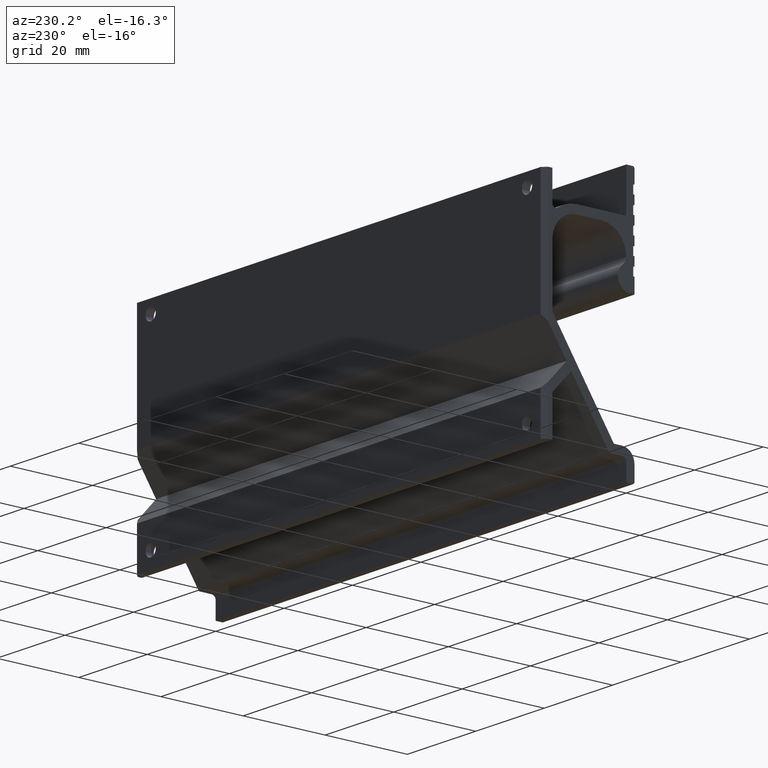
[diagram: clean part render]
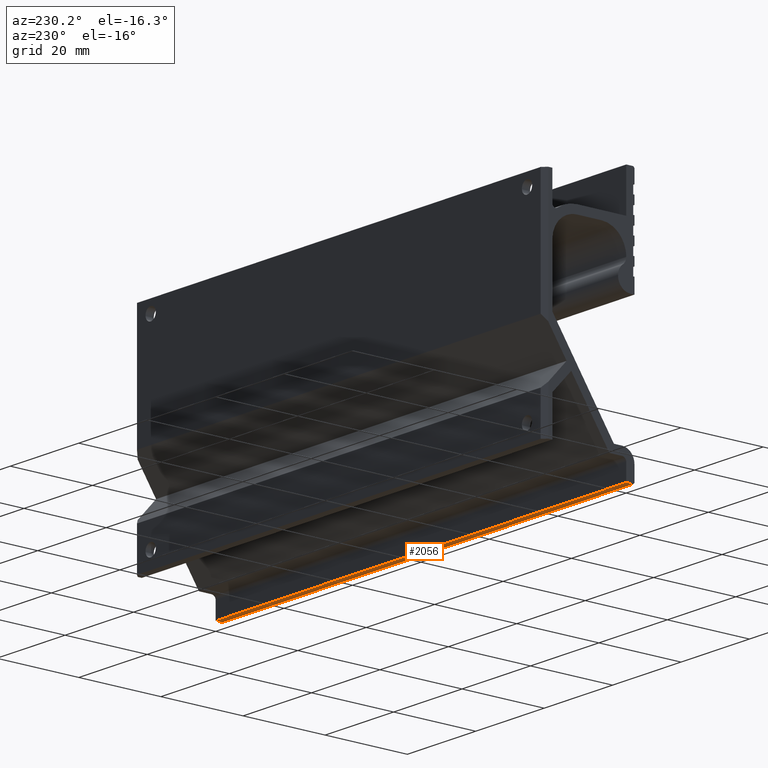
[diagram: same view with one face highlighted and labeled with its STEP entity id]
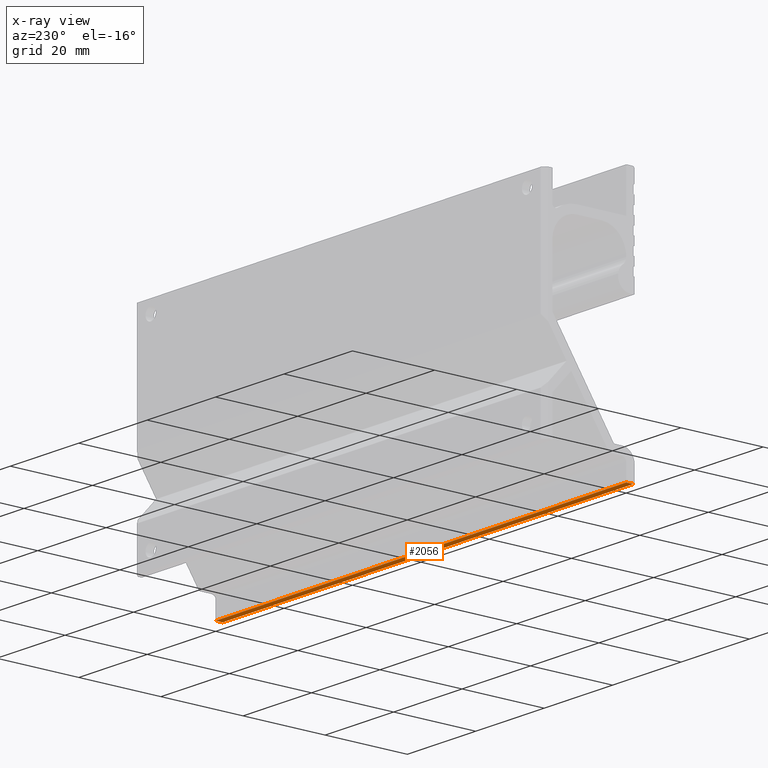
[diagram: x-ray of the same camera — body ghosted, the highlighted face saturated]
A machine part, auxiliary view. The second image highlights one B-rep face of the part: STEP entity #2056.
The next image is the same camera in x-ray: the body ghosted, the highlighted face saturated — about 0% of this face is hidden behind the body in this view.
In plain terms, the highlighted face is a freeform B-spline surface patch.
Its self-contained STEP definition (entity closure, byte-faithful):
#1269=CARTESIAN_POINT('',(60.0,-1.699999999999905,-1.040915E-016));
#1270=VERTEX_POINT('',#1269);
#1276=CARTESIAN_POINT('',(60.0,0.0,0.0));
#1277=VERTEX_POINT('',#1276);
#1278=CARTESIAN_POINT('',(60.0,-1.699999999999905,-1.040915E-016));
#1279=CARTESIAN_POINT('',(60.0,0.0,0.0));
#1280=QUASI_UNIFORM_CURVE('',1,(#1278,#1279),.UNSPECIFIED.,.F.,.U.);
#1281=EDGE_CURVE('',#1270,#1277,#1280,.T.);
#1410=CARTESIAN_POINT('',(-60.0,0.0,0.0));
#1411=VERTEX_POINT('',#1410);
#1417=CARTESIAN_POINT('',(-60.0,-1.699999999999905,-1.040915E-016));
#1418=VERTEX_POINT('',#1417);
#1419=CARTESIAN_POINT('',(-60.0,-1.699999999999905,-1.040915E-016));
#1420=CARTESIAN_POINT('',(-60.0,0.0,0.0));
#1421=QUASI_UNIFORM_CURVE('',1,(#1419,#1420),.UNSPECIFIED.,.F.,.U.);
#1422=EDGE_CURVE('',#1418,#1411,#1421,.T.);
#2031=CARTESIAN_POINT('',(-60.0,0.0,0.0));
#2032=CARTESIAN_POINT('',(60.0,0.0,0.0));
#2033=QUASI_UNIFORM_CURVE('',1,(#2031,#2032),.UNSPECIFIED.,.F.,.U.);
#2034=EDGE_CURVE('',#1411,#1277,#2033,.T.);
#2041=CARTESIAN_POINT('',(-65.993999767416696,-1.784915044580122,-1.040915E-016));
#2042=CARTESIAN_POINT('',(-65.993999767416696,0.084915044580216,-1.040915E-016));
#2043=CARTESIAN_POINT('',(65.994002986067528,-1.784915044580122,-1.040915E-016));
#2044=CARTESIAN_POINT('',(65.994002986067528,0.084915044580216,-1.040915E-016));
#2045=B_SPLINE_SURFACE_WITH_KNOTS('',1,1,((#2041,#2043),(#2042,#2044)),.UNSPECIFIED.,.F.,.F.,.U.,(2,2),(2,2),(0.0,1.869830089160338),(0.0,131.988002753484210),.UNSPECIFIED.);
#2046=ORIENTED_EDGE('',*,*,#1281,.F.);
#2047=CARTESIAN_POINT('',(-60.0,-1.699999999999905,-1.040915E-016));
#2048=CARTESIAN_POINT('',(60.0,-1.699999999999905,-1.040915E-016));
#2049=QUASI_UNIFORM_CURVE('',1,(#2047,#2048),.UNSPECIFIED.,.F.,.U.);
#2050=EDGE_CURVE('',#1418,#1270,#2049,.T.);
#2051=ORIENTED_EDGE('',*,*,#2050,.F.);
#2052=ORIENTED_EDGE('',*,*,#1422,.T.);
#2053=ORIENTED_EDGE('',*,*,#2034,.T.);
#2054=EDGE_LOOP('',(#2046,#2051,#2052,#2053));
#2055=FACE_OUTER_BOUND('',#2054,.T.);
#2056=ADVANCED_FACE('',(#2055),#2045,.T.);